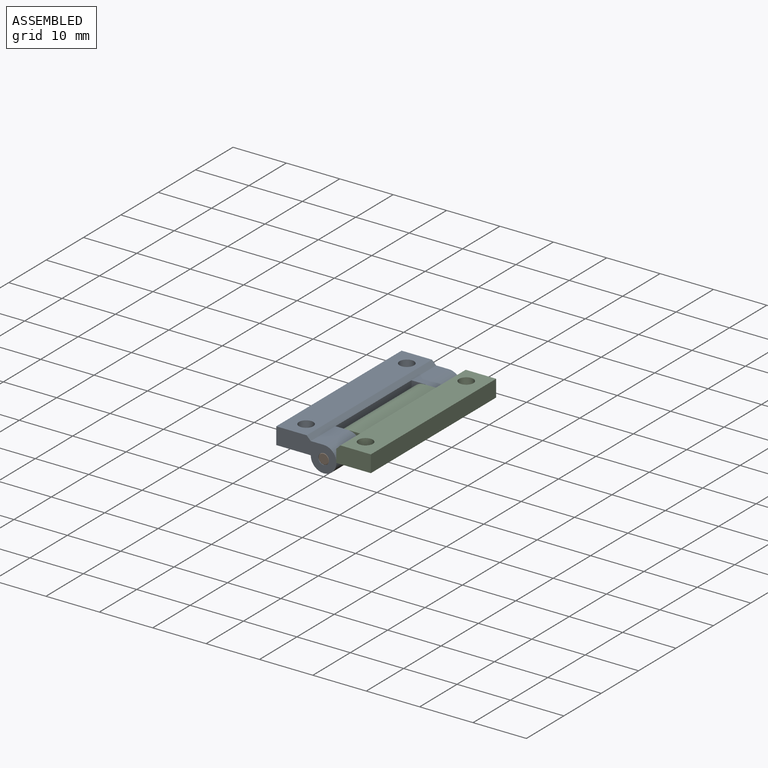
[diagram: assembled view]
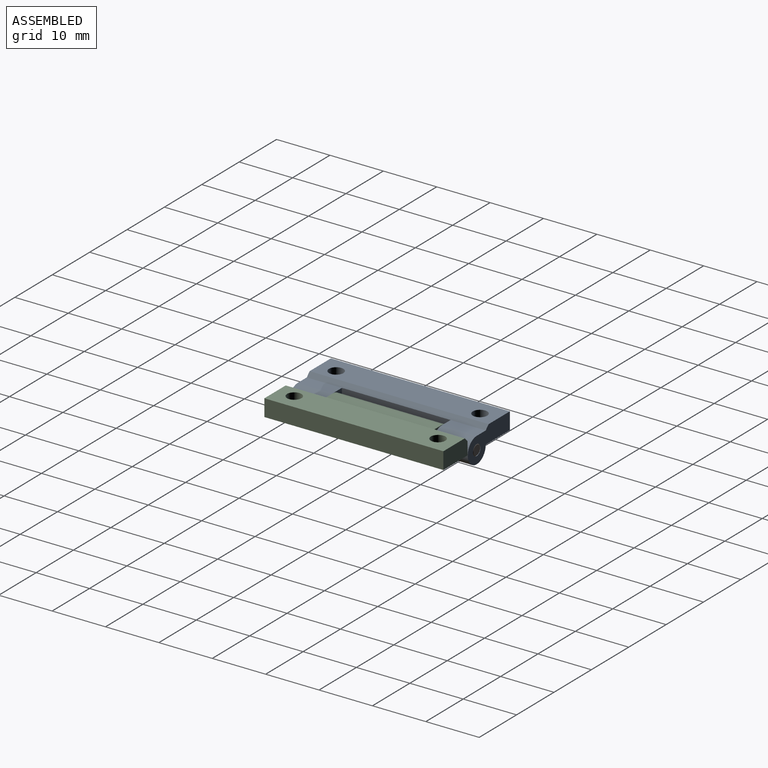
[diagram: assembled view, second angle]
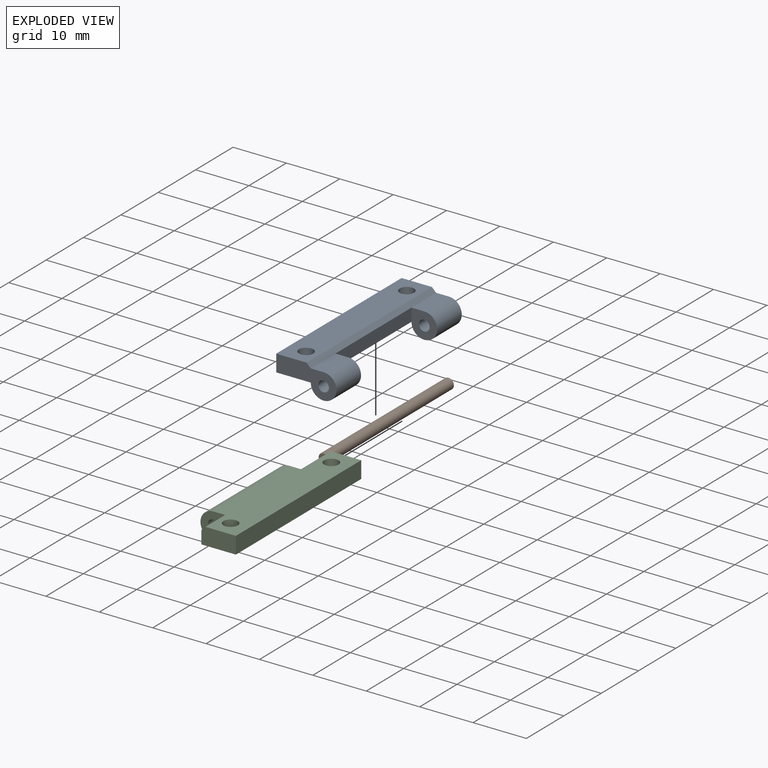
[diagram: exploded view]
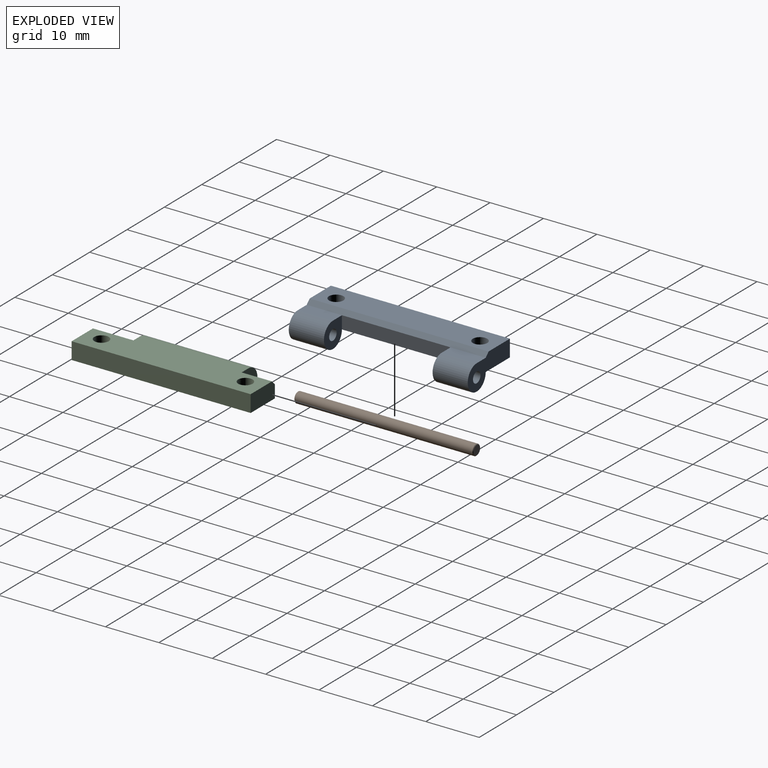
[diagram: exploded view, second angle]
ASSEMBLY  parts=3 mates=2
PART A: 17 faces, bbox 11.3x33.5x5.6 mm
  f0: cylinder r=1.35mm len=3.18mm, axis (0,0,-1), area 27mm2, adj f8,f11
  f1: cylinder r=1.35mm len=3.18mm, axis (0,0,-1), area 27mm2, adj f8,f11
  f2: cylinder r=1mm len=6.59mm, axis (0,-1,0), area 41.4mm2, adj f7,f10
  f3: cylinder r=2.4mm len=6.59mm, axis (0,-1,0), area 74.6mm2, adj f6,f9,f11,f15
  f4: cylinder r=1mm len=6.59mm, axis (0,-1,0), area 41.4mm2, adj f6,f9
  f5: cylinder r=2.4mm len=6.59mm, axis (0,-1,0), area 74.6mm2, adj f7,f10,f11,f14
  f6: plane 11.28x5.58mm, normal (0,1,0), area 36.5mm2, adj f3,f4,f8,f11,f12,f15,f16
  f7: plane 11.28x5.58mm, normal (0,-1,0), area 36.5mm2, adj f2,f5,f8,f11,f12,f14,f16
  f8: plane 33.53x5.7mm, normal (0,0,1), area 179.6mm2, adj f0,f1,f6,f7,f12,f16
  f9: plane 4.81x4.81mm, normal (0,-1,0), area 16.3mm2, adj f3,f4,f13,f15
  f10: plane 4.81x4.81mm, normal (0,1,0), area 16.3mm2, adj f2,f5,f13,f14
  f11: plane 33.53x6.47mm, normal (0,0,-1), area 205.4mm2, adj f0,f1,f3,f5,f6,f7,f12,f13
  f12: plane 33.53x3.18mm, normal (-1,0,0), area 106.5mm2, adj f6,f7,f8,f11
  f13: plane 20.35x2.4mm, normal (1,0,0), area 48.9mm2, adj f9,f10,f11,f16
  f14: plane 6.59x2.4mm, normal (0,0,1), area 15.8mm2, adj f5,f7,f10,f16
  f15: plane 6.59x2.4mm, normal (0,0,1), area 15.8mm2, adj f3,f6,f9,f16
  f16: plane 33.53x0.77mm, normal (0.71,0,0.71), area 36.5mm2, adj f6,f7,f8,f13,f14,f15
PART B: 5 faces, bbox 2x33.5x2 mm
  f0: cone r=0.9mm half-angle=45deg, axis (0,-1,0), area 0.9mm2, adj f2,f3
  f1: cone r=1mm half-angle=45deg, axis (0,1,0), area 0.9mm2, adj f2,f4
  f2: cylinder r=1mm len=33.32mm, axis (0,-1,0), area 209.4mm2, adj f0,f1
  f3: plane 1.8x1.8mm, normal (0,1,0), area 2.5mm2, adj f0
  f4: plane 1.8x1.8mm, normal (0,-1,0), area 2.5mm2, adj f1
PART C: 15 faces, bbox 11.3x33.5x5.6 mm
  f0: cylinder r=1.35mm len=3.18mm, axis (0,0,-1), area 27mm2, adj f7,f9
  f1: cylinder r=1.35mm len=3.18mm, axis (0,0,-1), area 27mm2, adj f7,f9
  f2: cylinder r=1.03mm len=20.28mm, axis (0,-1,0), area 130.6mm2, adj f11,f12
  f3: cylinder r=2.4mm len=20.28mm, axis (0,-1,0), area 229.8mm2, adj f7,f11,f12,f13
  f4: plane 6.63x2.4mm, normal (1,0,0), area 15.9mm2, adj f5,f7,f11,f14
  f5: plane 6.47x3.18mm, normal (0,1,0), area 20.2mm2, adj f4,f7,f8,f9,f14
  f6: plane 6.47x3.18mm, normal (0,-1,0), area 20.2mm2, adj f7,f8,f9,f10,f14
  f7: plane 33.53x6.47mm, normal (0,0,-1), area 205.4mm2, adj f0,f1,f3,f4,f5,f6,f8,f10
  f8: plane 33.53x3.18mm, normal (-1,0,0), area 106.5mm2, adj f5,f6,f7,f9
  f9: plane 33.53x5.7mm, normal (0,0,1), area 179.6mm2, adj f0,f1,f5,f6,f8,f14
  f10: plane 6.63x2.4mm, normal (1,0,0), area 15.9mm2, adj f6,f7,f12,f14
  f11: plane 4.81x4.81mm, normal (0,1,0), area 16.1mm2, adj f2,f3,f4,f13
  f12: plane 4.81x4.81mm, normal (0,-1,0), area 16.1mm2, adj f2,f3,f10,f13
  f13: plane 20.28x2.4mm, normal (0,0,1), area 48.8mm2, adj f3,f11,f12,f14
  f14: plane 33.53x0.77mm, normal (0.71,0,0.71), area 36.5mm2, adj f4,f5,f6,f9,f10,f13
PLACE A at identity
PLACE B at identity
PLACE C rot(axis=(0,0,-1),180deg) t=(0,33.49,0)mm
MATE fastened B.f0 <-> A.f2  axis (0,-1,0) through (0,0,0)mm
MATE revolute C.f2 <-> A.f2  axis (0,1,0) through (0,6.59,0)mm
